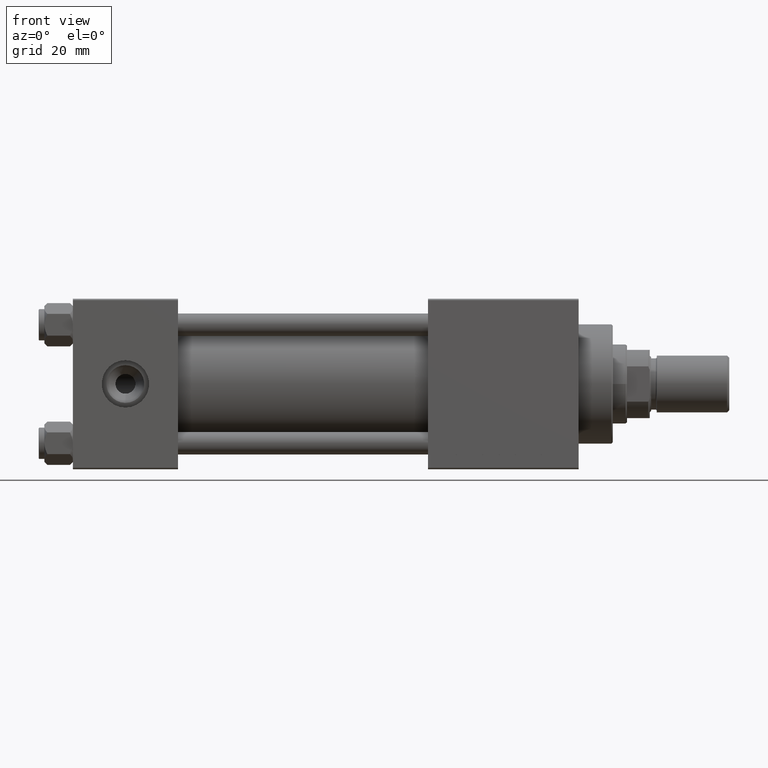
[diagram: clean part render]
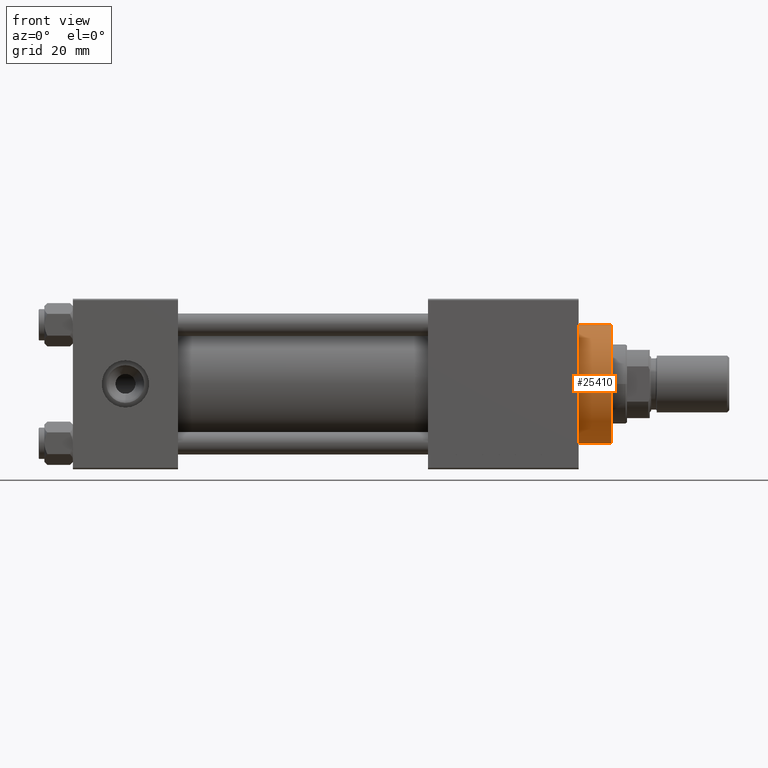
[diagram: same view with one face highlighted and labeled with its STEP entity id]
A machine part, front view. The second image highlights one B-rep face of the part: STEP entity #25410.
In plain terms, the highlighted cylindrical surface (partial cylindrical patch) has radius 21 mm, axis along (-1, -0, -0).
Its self-contained STEP definition (entity closure, byte-faithful):
#71 = FACE_OUTER_BOUND ( 'NONE', #40794, .T. ) ;
#1845 = EDGE_CURVE ( 'NONE', #34385, #50262, #39524, .T. ) ;
#1857 = CARTESIAN_POINT ( 'NONE',  ( 21.00000000000000000, 2.571758278209441661E-15, 28.69999999999999929 ) ) ;
#3635 = ORIENTED_EDGE ( 'NONE', *, *, #39235, .T. ) ;
#4419 = CARTESIAN_POINT ( 'NONE',  ( 0.000000000000000000, 0.000000000000000000, 40.70000000000000284 ) ) ;
#5047 = EDGE_CURVE ( 'NONE', #12346, #50262, #20866, .T. ) ;
#5192 = DIRECTION ( 'NONE',  ( -0.000000000000000000, -0.000000000000000000, -1.000000000000000000 ) ) ;
#7749 = DIRECTION ( 'NONE',  ( 1.000000000000000000, 0.000000000000000000, 0.000000000000000000 ) ) ;
#8167 = DIRECTION ( 'NONE',  ( -0.000000000000000000, -0.000000000000000000, -1.000000000000000000 ) ) ;
#8256 = CARTESIAN_POINT ( 'NONE',  ( 0.000000000000000000, 0.000000000000000000, 40.19999999999998863 ) ) ;
#8486 = ORIENTED_EDGE ( 'NONE', *, *, #5047, .T. ) ;
#9360 = EDGE_CURVE ( 'NONE', #28264, #12346, #27625, .T. ) ;
#11350 = CYLINDRICAL_SURFACE ( 'NONE', #26393, 21.00000000000000000 ) ;
#12346 = VERTEX_POINT ( 'NONE', #49861 ) ;
#12877 = CARTESIAN_POINT ( 'NONE',  ( 21.00000000000000000, 2.571758278209441661E-15, 40.70000000000000284 ) ) ;
#13402 = ORIENTED_EDGE ( 'NONE', *, *, #1845, .F. ) ;
#15768 = CARTESIAN_POINT ( 'NONE',  ( -21.00000000000000000, 0.000000000000000000, 40.19999999999998863 ) ) ;
#16981 = DIRECTION ( 'NONE',  ( 0.000000000000000000, 0.000000000000000000, 1.000000000000000000 ) ) ;
#20866 = CIRCLE ( 'NONE', #27401, 21.00000000000000000 ) ;
#21271 = ORIENTED_EDGE ( 'NONE', *, *, #9360, .T. ) ;
#23380 = CARTESIAN_POINT ( 'NONE',  ( 21.00000000000000000, 2.571758278209441661E-15, 40.19999999999998863 ) ) ;
#23382 = DIRECTION ( 'NONE',  ( -1.000000000000000000, 0.000000000000000000, 0.000000000000000000 ) ) ;
#25410 = ADVANCED_FACE ( 'NONE', ( #71 ), #11350, .T. ) ;
#26393 = AXIS2_PLACEMENT_3D ( 'NONE', #4419, #38746, #23382 ) ;
#27401 = AXIS2_PLACEMENT_3D ( 'NONE', #39274, #16981, #40284 ) ;
#27625 = LINE ( 'NONE', #43254, #32537 ) ;
#28264 = VERTEX_POINT ( 'NONE', #15768 ) ;
#32537 = VECTOR ( 'NONE', #8167, 1000.000000000000000 ) ;
#34385 = VERTEX_POINT ( 'NONE', #23380 ) ;
#38746 = DIRECTION ( 'NONE',  ( -0.000000000000000000, -0.000000000000000000, -1.000000000000000000 ) ) ;
#39235 = EDGE_CURVE ( 'NONE', #34385, #28264, #43995, .T. ) ;
#39274 = CARTESIAN_POINT ( 'NONE',  ( 0.000000000000000000, 0.000000000000000000, 28.69999999999999929 ) ) ;
#39524 = LINE ( 'NONE', #12877, #43672 ) ;
#40284 = DIRECTION ( 'NONE',  ( 1.000000000000000000, 0.000000000000000000, 0.000000000000000000 ) ) ;
#40794 = EDGE_LOOP ( 'NONE', ( #13402, #3635, #21271, #8486 ) ) ;
#43254 = CARTESIAN_POINT ( 'NONE',  ( -21.00000000000000000, 0.000000000000000000, 40.70000000000000284 ) ) ;
#43672 = VECTOR ( 'NONE', #5192, 1000.000000000000000 ) ;
#43995 = CIRCLE ( 'NONE', #50555, 21.00000000000000000 ) ;
#46936 = DIRECTION ( 'NONE',  ( 0.000000000000000000, 0.000000000000000000, -1.000000000000000000 ) ) ;
#49861 = CARTESIAN_POINT ( 'NONE',  ( -21.00000000000000000, 0.000000000000000000, 28.69999999999999929 ) ) ;
#50262 = VERTEX_POINT ( 'NONE', #1857 ) ;
#50555 = AXIS2_PLACEMENT_3D ( 'NONE', #8256, #46936, #7749 ) ;